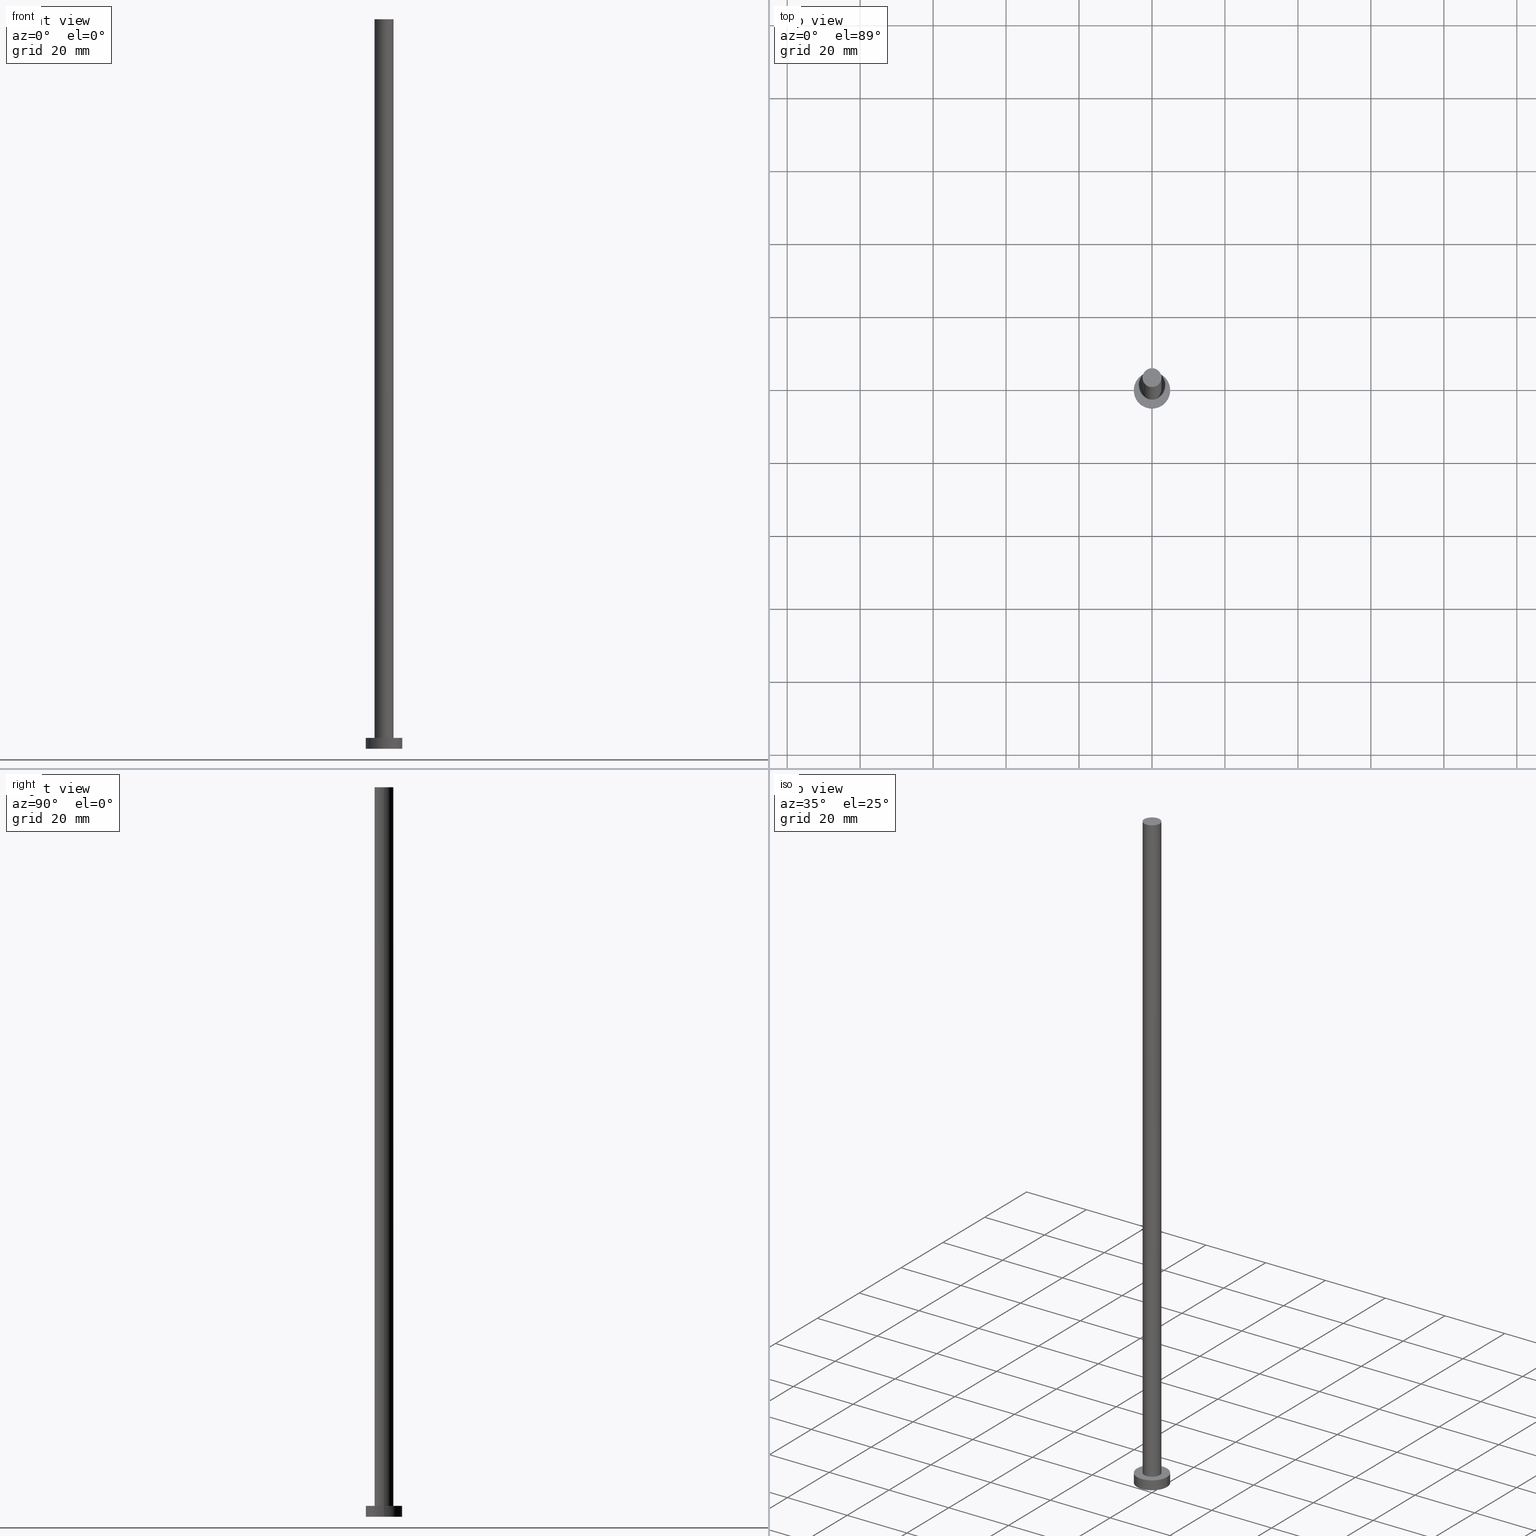
[diagram: canonical four-view strip — front | top / right | iso, engineering-drawing reading convention]
A machine part, canonical four-view strip (front | top / right | iso — engineering-drawing reading convention). The complete STEP part file that produces these views, byte-faithful:
ISO-10303-21;
HEADER;
FILE_DESCRIPTION (( 'STEP AP203' ),
    '1' );
FILE_NAME ('c679.STEP',
    '2023-02-13T14:35:28',
    ( '' ),
    ( '' ),
    'SwSTEP 2.0',
    'SolidWorks 2019',
    '' );
FILE_SCHEMA (( 'CONFIG_CONTROL_DESIGN' ));
ENDSEC;

DATA;
#1 = ORIENTED_EDGE ( 'NONE', *, *, #36, .T. ) ;
#2 = EDGE_CURVE ( 'NONE', #81, #23, #125, .T. ) ;
#3 = ORGANIZATION ( 'NEUR�EN�', 'NEUR�EN�', '' ) ;
#4 = AXIS2_PLACEMENT_3D ( 'NONE', #99, #122, #201 ) ;
#5 = COORDINATED_UNIVERSAL_TIME_OFFSET ( 1, 0, .AHEAD. ) ;
#6 = EDGE_CURVE ( 'NONE', #19, #157, #21, .T. ) ;
#7 = MECHANICAL_CONTEXT ( 'NONE', #75, 'mechanical' ) ;
#8 = APPLICATION_PROTOCOL_DEFINITION ( 'international standard', 'config_control_design', 1994, #124 ) ;
#9 = LOCAL_TIME ( 15, 35, 28.00000000000000000, #139 ) ;
#10 =( LENGTH_UNIT ( ) NAMED_UNIT ( * ) SI_UNIT ( .MILLI., .METRE. ) );
#11 = DIRECTION ( 'NONE',  ( -0.000000000000000000, -0.000000000000000000, -1.000000000000000000 ) ) ;
#12 = DIRECTION ( 'NONE',  ( -0.000000000000000000, -0.000000000000000000, -1.000000000000000000 ) ) ;
#13 = SECURITY_CLASSIFICATION_LEVEL ( 'unclassified' ) ;
#14 = CARTESIAN_POINT ( 'NONE',  ( 0.000000000000000000, 0.000000000000000000, 3.000000000000000000 ) ) ;
#15 = CARTESIAN_POINT ( 'NONE',  ( 2.600000000000000089, 3.184081677783118191E-16, 200.0000000000000000 ) ) ;
#16 = DIRECTION ( 'NONE',  ( -0.000000000000000000, -0.000000000000000000, -1.000000000000000000 ) ) ;
#17 = VERTEX_POINT ( 'NONE', #198 ) ;
#18 = ORIENTED_EDGE ( 'NONE', *, *, #177, .T. ) ;
#19 = VERTEX_POINT ( 'NONE', #76 ) ;
#20 = CC_DESIGN_SECURITY_CLASSIFICATION ( #54, ( #147 ) ) ;
#21 = CIRCLE ( 'NONE', #116, 5.000000000000000000 ) ;
#22 = VERTEX_POINT ( 'NONE', #37 ) ;
#23 = VERTEX_POINT ( 'NONE', #218 ) ;
#24 = DIRECTION ( 'NONE',  ( 0.000000000000000000, 0.000000000000000000, 1.000000000000000000 ) ) ;
#25 = VECTOR ( 'NONE', #149, 1000.000000000000000 ) ;
#26 = DIRECTION ( 'NONE',  ( 1.000000000000000000, 0.000000000000000000, -0.000000000000000000 ) ) ;
#27 = DIRECTION ( 'NONE',  ( 0.000000000000000000, 0.000000000000000000, 1.000000000000000000 ) ) ;
#28 = APPROVAL ( #104, 'NEUR�EN�' ) ;
#29 = DATE_AND_TIME ( #247, #79 ) ;
#30 = LINE ( 'NONE', #192, #237 ) ;
#31 = PERSON_AND_ORGANIZATION ( #106, #3 ) ;
#32 = CYLINDRICAL_SURFACE ( 'NONE', #60, 2.600000000000000089 ) ;
#33 = ORIENTED_EDGE ( 'NONE', *, *, #6, .F. ) ;
#34 = APPROVAL_ROLE ( '' ) ;
#35 = EDGE_LOOP ( 'NONE', ( #141, #195 ) ) ;
#36 = EDGE_CURVE ( 'NONE', #153, #179, #41, .T. ) ;
#37 = CARTESIAN_POINT ( 'NONE',  ( 2.600000000000000089, 3.184081677783118191E-16, 200.0000000000000000 ) ) ;
#38 = LOCAL_TIME ( 15, 35, 28.00000000000000000, #94 ) ;
#39 = ORIENTED_EDGE ( 'NONE', *, *, #78, .F. ) ;
#40 = DIRECTION ( 'NONE',  ( 1.000000000000000000, 0.000000000000000000, -0.000000000000000000 ) ) ;
#41 = CIRCLE ( 'NONE', #4, 5.000000000000000000 ) ;
#42 = AXIS2_PLACEMENT_3D ( 'NONE', #48, #243, #51 ) ;
#43 = ORIENTED_EDGE ( 'NONE', *, *, #228, .T. ) ;
#44 = APPROVAL_DATE_TIME ( #226, #28 ) ;
#45 =( NAMED_UNIT ( * ) PLANE_ANGLE_UNIT ( ) SI_UNIT ( $, .RADIAN. ) );
#46 = AXIS2_PLACEMENT_3D ( 'NONE', #129, #58, #150 ) ;
#47 = DIRECTION ( 'NONE',  ( 0.000000000000000000, 0.000000000000000000, 1.000000000000000000 ) ) ;
#48 = CARTESIAN_POINT ( 'NONE',  ( 0.000000000000000000, 0.000000000000000000, 200.0000000000000000 ) ) ;
#49 = EDGE_CURVE ( 'NONE', #179, #153, #128, .T. ) ;
#50 = CYLINDRICAL_SURFACE ( 'NONE', #108, 5.000000000000000000 ) ;
#51 = DIRECTION ( 'NONE',  ( 1.000000000000000000, 0.000000000000000000, -0.000000000000000000 ) ) ;
#52 = APPROVAL_STATUS ( 'not_yet_approved' ) ;
#53 = DIRECTION ( 'NONE',  ( -1.000000000000000000, 0.000000000000000000, 0.000000000000000000 ) ) ;
#54 = SECURITY_CLASSIFICATION ( '', '', #13 ) ;
#55 = LINE ( 'NONE', #92, #25 ) ;
#56 = PERSON_AND_ORGANIZATION_ROLE ( 'design_supplier' ) ;
#57 = CARTESIAN_POINT ( 'NONE',  ( 0.000000000000000000, 0.000000000000000000, 0.000000000000000000 ) ) ;
#58 = DIRECTION ( 'NONE',  ( -0.000000000000000000, -0.000000000000000000, -1.000000000000000000 ) ) ;
#59 = EDGE_LOOP ( 'NONE', ( #65, #64 ) ) ;
#60 = AXIS2_PLACEMENT_3D ( 'NONE', #169, #110, #245 ) ;
#61 = EDGE_LOOP ( 'NONE', ( #82, #178, #101, #1 ) ) ;
#62 = DATE_TIME_ROLE ( 'creation_date' ) ;
#63 = EDGE_CURVE ( 'NONE', #17, #81, #214, .T. ) ;
#64 = ORIENTED_EDGE ( 'NONE', *, *, #78, .T. ) ;
#65 = ORIENTED_EDGE ( 'NONE', *, *, #202, .T. ) ;
#66 = CC_DESIGN_APPROVAL ( #28, ( #156 ) ) ;
#67 = AXIS2_PLACEMENT_3D ( 'NONE', #89, #111, #232 ) ;
#68 = APPROVAL_ROLE ( '' ) ;
#69 = CC_DESIGN_PERSON_AND_ORGANIZATION_ASSIGNMENT ( #154, #98, ( #156 ) ) ;
#70 = PLANE ( 'NONE',  #42 ) ;
#71 = DIRECTION ( 'NONE',  ( 0.000000000000000000, 0.000000000000000000, 1.000000000000000000 ) ) ;
#72 = PERSON_AND_ORGANIZATION_ROLE ( 'classification_officer' ) ;
#73 = FACE_OUTER_BOUND ( 'NONE', #117, .T. ) ;
#74 = FACE_OUTER_BOUND ( 'NONE', #251, .T. ) ;
#75 = APPLICATION_CONTEXT ( 'configuration controlled 3d designs of mechanical parts and assemblies' ) ;
#76 = CARTESIAN_POINT ( 'NONE',  ( 5.000000000000000000, 6.123233995736766282E-16, 3.000000000000000000 ) ) ;
#77 = APPROVAL_STATUS ( 'not_yet_approved' ) ;
#78 = EDGE_CURVE ( 'NONE', #22, #17, #185, .T. ) ;
#79 = LOCAL_TIME ( 15, 35, 28.00000000000000000, #244 ) ;
#80 = ORIENTED_EDGE ( 'NONE', *, *, #167, .F. ) ;
#81 = VERTEX_POINT ( 'NONE', #230 ) ;
#82 = ORIENTED_EDGE ( 'NONE', *, *, #220, .F. ) ;
#83 =( NAMED_UNIT ( * ) SI_UNIT ( $, .STERADIAN. ) SOLID_ANGLE_UNIT ( ) );
#84 = ADVANCED_FACE ( 'NONE', ( #213 ), #152, .T. ) ;
#85 = CALENDAR_DATE ( 2023, 13, 2 ) ;
#86 = AXIS2_PLACEMENT_3D ( 'NONE', #255, #240, #119 ) ;
#87 = CC_DESIGN_PERSON_AND_ORGANIZATION_ASSIGNMENT ( #254, #56, ( #147 ) ) ;
#88 = PRODUCT ( 'c679', 'c679', '', ( #7 ) ) ;
#89 = CARTESIAN_POINT ( 'NONE',  ( 0.000000000000000000, 0.000000000000000000, 3.000000000000000000 ) ) ;
#90 = CC_DESIGN_APPROVAL ( #136, ( #147 ) ) ;
#91 = AXIS2_PLACEMENT_3D ( 'NONE', #114, #16, #215 ) ;
#92 = CARTESIAN_POINT ( 'NONE',  ( 5.000000000000000000, 6.123233995736766282E-16, 3.000000000000000000 ) ) ;
#93 = DIRECTION ( 'NONE',  ( 1.000000000000000000, 0.000000000000000000, 0.000000000000000000 ) ) ;
#94 = COORDINATED_UNIVERSAL_TIME_OFFSET ( 1, 0, .AHEAD. ) ;
#95 = PLANE ( 'NONE',  #200 ) ;
#96 = CIRCLE ( 'NONE', #241, 2.600000000000000089 ) ;
#97 = ORIENTED_EDGE ( 'NONE', *, *, #2, .T. ) ;
#98 = PERSON_AND_ORGANIZATION_ROLE ( 'creator' ) ;
#99 = CARTESIAN_POINT ( 'NONE',  ( 0.000000000000000000, 0.000000000000000000, 0.000000000000000000 ) ) ;
#100 = PERSON_AND_ORGANIZATION ( #106, #3 ) ;
#101 = ORIENTED_EDGE ( 'NONE', *, *, #167, .T. ) ;
#102 = ORIENTED_EDGE ( 'NONE', *, *, #220, .T. ) ;
#103 = ORIENTED_EDGE ( 'NONE', *, *, #2, .F. ) ;
#104 = APPROVAL_STATUS ( 'not_yet_approved' ) ;
#105 = UNCERTAINTY_MEASURE_WITH_UNIT (LENGTH_MEASURE( 1.000000000000000082E-05 ), #10, 'distance_accuracy_value', 'NONE');
#106 = PERSON ( 'NEUR�EN�', 'NEUR�EN�', 'NEUR�EN�', ('NEUR�EN�'), ('NEUR�EN�'), ('NEUR�EN�') ) ;
#107 = EDGE_CURVE ( 'NONE', #157, #19, #217, .T. ) ;
#108 = AXIS2_PLACEMENT_3D ( 'NONE', #211, #12, #53 ) ;
#109 = ADVANCED_FACE ( 'NONE', ( #74 ), #162, .T. ) ;
#110 = DIRECTION ( 'NONE',  ( -0.000000000000000000, -0.000000000000000000, -1.000000000000000000 ) ) ;
#111 = DIRECTION ( 'NONE',  ( 0.000000000000000000, 0.000000000000000000, 1.000000000000000000 ) ) ;
#112 = FACE_BOUND ( 'NONE', #221, .T. ) ;
#113 = DATE_TIME_ROLE ( 'classification_date' ) ;
#114 = CARTESIAN_POINT ( 'NONE',  ( 0.000000000000000000, 0.000000000000000000, 200.0000000000000000 ) ) ;
#115 = APPROVAL_PERSON_ORGANIZATION ( #142, #136, #34 ) ;
#116 = AXIS2_PLACEMENT_3D ( 'NONE', #172, #143, #138 ) ;
#117 = EDGE_LOOP ( 'NONE', ( #121, #238 ) ) ;
#118 = APPROVAL ( #52, 'NEUR�EN�' ) ;
#119 = DIRECTION ( 'NONE',  ( 1.000000000000000000, 0.000000000000000000, 0.000000000000000000 ) ) ;
#120 = DATE_AND_TIME ( #219, #9 ) ;
#121 = ORIENTED_EDGE ( 'NONE', *, *, #36, .F. ) ;
#122 = DIRECTION ( 'NONE',  ( 0.000000000000000000, 0.000000000000000000, 1.000000000000000000 ) ) ;
#123 = EDGE_LOOP ( 'NONE', ( #203, #155, #222, #97 ) ) ;
#124 = APPLICATION_CONTEXT ( 'configuration controlled 3d designs of mechanical parts and assemblies' ) ;
#125 = CIRCLE ( 'NONE', #86, 2.600000000000000089 ) ;
#126 = PERSON_AND_ORGANIZATION ( #106, #3 ) ;
#127 = ADVANCED_FACE ( 'NONE', ( #73 ), #95, .F. ) ;
#128 = CIRCLE ( 'NONE', #182, 5.000000000000000000 ) ;
#129 = CARTESIAN_POINT ( 'NONE',  ( 0.000000000000000000, 0.000000000000000000, 3.000000000000000000 ) ) ;
#130 = CARTESIAN_POINT ( 'NONE',  ( 0.000000000000000000, 0.000000000000000000, 0.000000000000000000 ) ) ;
#131 = ADVANCED_FACE ( 'NONE', ( #190 ), #32, .T. ) ;
#132 = PERSON_AND_ORGANIZATION ( #106, #3 ) ;
#133 = DIRECTION ( 'NONE',  ( 1.000000000000000000, 0.000000000000000000, 0.000000000000000000 ) ) ;
#134 = FACE_OUTER_BOUND ( 'NONE', #59, .T. ) ;
#135 = DIRECTION ( 'NONE',  ( 1.000000000000000000, 0.000000000000000000, 0.000000000000000000 ) ) ;
#136 = APPROVAL ( #77, 'NEUR�EN�' ) ;
#137 = AXIS2_PLACEMENT_3D ( 'NONE', #14, #248, #135 ) ;
#138 = DIRECTION ( 'NONE',  ( 1.000000000000000000, 0.000000000000000000, 0.000000000000000000 ) ) ;
#139 = COORDINATED_UNIVERSAL_TIME_OFFSET ( 1, 0, .AHEAD. ) ;
#140 = CARTESIAN_POINT ( 'NONE',  ( 0.000000000000000000, 0.000000000000000000, 0.000000000000000000 ) ) ;
#141 = ORIENTED_EDGE ( 'NONE', *, *, #107, .T. ) ;
#142 = PERSON_AND_ORGANIZATION ( #106, #3 ) ;
#143 = DIRECTION ( 'NONE',  ( 0.000000000000000000, 0.000000000000000000, 1.000000000000000000 ) ) ;
#144 = CC_DESIGN_DATE_AND_TIME_ASSIGNMENT ( #212, #113, ( #54 ) ) ;
#145 = AXIS2_PLACEMENT_3D ( 'NONE', #209, #27, #133 ) ;
#146 = PRODUCT_RELATED_PRODUCT_CATEGORY ( 'detail', '', ( #88 ) ) ;
#147 = PRODUCT_DEFINITION_FORMATION_WITH_SPECIFIED_SOURCE ( 'LIBOVOLN�', '', #88, .NOT_KNOWN. ) ;
#148 = CARTESIAN_POINT ( 'NONE',  ( -5.000000000000000000, 0.000000000000000000, 0.000000000000000000 ) ) ;
#149 = DIRECTION ( 'NONE',  ( -0.000000000000000000, -0.000000000000000000, -1.000000000000000000 ) ) ;
#150 = DIRECTION ( 'NONE',  ( -1.000000000000000000, 0.000000000000000000, 0.000000000000000000 ) ) ;
#151 = CLOSED_SHELL ( 'NONE', ( #109, #206, #84, #234, #127, #131, #229 ) ) ;
#152 = CYLINDRICAL_SURFACE ( 'NONE', #46, 5.000000000000000000 ) ;
#153 = VERTEX_POINT ( 'NONE', #148 ) ;
#154 = PERSON_AND_ORGANIZATION ( #106, #3 ) ;
#155 = ORIENTED_EDGE ( 'NONE', *, *, #202, .F. ) ;
#156 = PRODUCT_DEFINITION ( 'NEZN�M�', '', #147, #187 ) ;
#157 = VERTEX_POINT ( 'NONE', #188 ) ;
#158 = VECTOR ( 'NONE', #235, 1000.000000000000000 ) ;
#159 = CARTESIAN_POINT ( 'NONE',  ( 5.000000000000000000, 6.123233995736766282E-16, 0.000000000000000000 ) ) ;
#160 = DIRECTION ( 'NONE',  ( -0.000000000000000000, -0.000000000000000000, -1.000000000000000000 ) ) ;
#161 = APPROVAL_ROLE ( '' ) ;
#162 = CYLINDRICAL_SURFACE ( 'NONE', #91, 2.600000000000000089 ) ;
#163 = FACE_OUTER_BOUND ( 'NONE', #35, .T. ) ;
#164 = CALENDAR_DATE ( 2023, 13, 2 ) ;
#165 = DIRECTION ( 'NONE',  ( 0.000000000000000000, 0.000000000000000000, 1.000000000000000000 ) ) ;
#166 = ADVANCED_BREP_SHAPE_REPRESENTATION ( 'c679', ( #216, #224 ), #186 ) ;
#167 = EDGE_CURVE ( 'NONE', #157, #153, #30, .T. ) ;
#168 = CC_DESIGN_APPROVAL ( #118, ( #54 ) ) ;
#169 = CARTESIAN_POINT ( 'NONE',  ( 0.000000000000000000, 0.000000000000000000, 200.0000000000000000 ) ) ;
#170 = CIRCLE ( 'NONE', #67, 2.600000000000000089 ) ;
#171 = AXIS2_PLACEMENT_3D ( 'NONE', #180, #24, #40 ) ;
#172 = CARTESIAN_POINT ( 'NONE',  ( 0.000000000000000000, 0.000000000000000000, 3.000000000000000000 ) ) ;
#173 = COORDINATED_UNIVERSAL_TIME_OFFSET ( 1, 0, .AHEAD. ) ;
#174 = APPLICATION_PROTOCOL_DEFINITION ( 'international standard', 'config_control_design', 1994, #75 ) ;
#175 = PERSON_AND_ORGANIZATION_ROLE ( 'creator' ) ;
#176 = LOCAL_TIME ( 15, 35, 28.00000000000000000, #5 ) ;
#177 = EDGE_CURVE ( 'NONE', #23, #81, #170, .T. ) ;
#178 = ORIENTED_EDGE ( 'NONE', *, *, #107, .F. ) ;
#179 = VERTEX_POINT ( 'NONE', #159 ) ;
#180 = CARTESIAN_POINT ( 'NONE',  ( 0.000000000000000000, 0.000000000000000000, 3.000000000000000000 ) ) ;
#181 = CC_DESIGN_DATE_AND_TIME_ASSIGNMENT ( #252, #62, ( #156 ) ) ;
#182 = AXIS2_PLACEMENT_3D ( 'NONE', #130, #165, #233 ) ;
#183 = PERSON_AND_ORGANIZATION_ROLE ( 'design_owner' ) ;
#184 = CC_DESIGN_PERSON_AND_ORGANIZATION_ASSIGNMENT ( #100, #175, ( #147 ) ) ;
#185 = CIRCLE ( 'NONE', #145, 2.600000000000000089 ) ;
#186 =( GEOMETRIC_REPRESENTATION_CONTEXT ( 3 ) GLOBAL_UNCERTAINTY_ASSIGNED_CONTEXT ( ( #105 ) ) GLOBAL_UNIT_ASSIGNED_CONTEXT ( ( #10, #45, #83 ) ) REPRESENTATION_CONTEXT ( 'NONE', 'WORKASPACE' ) );
#187 = DESIGN_CONTEXT ( 'detailed design', #124, 'design' ) ;
#188 = CARTESIAN_POINT ( 'NONE',  ( -5.000000000000000000, 0.000000000000000000, 3.000000000000000000 ) ) ;
#189 = PRODUCT_DEFINITION_SHAPE ( 'NONE', 'NONE',  #156 ) ;
#190 = FACE_OUTER_BOUND ( 'NONE', #123, .T. ) ;
#191 = APPROVAL_DATE_TIME ( #29, #118 ) ;
#192 = CARTESIAN_POINT ( 'NONE',  ( -5.000000000000000000, 0.000000000000000000, 3.000000000000000000 ) ) ;
#193 = LINE ( 'NONE', #15, #249 ) ;
#194 = CARTESIAN_POINT ( 'NONE',  ( -2.600000000000000089, 0.000000000000000000, 200.0000000000000000 ) ) ;
#195 = ORIENTED_EDGE ( 'NONE', *, *, #6, .T. ) ;
#196 = ORIENTED_EDGE ( 'NONE', *, *, #63, .F. ) ;
#197 = APPROVAL_DATE_TIME ( #120, #136 ) ;
#198 = CARTESIAN_POINT ( 'NONE',  ( -2.600000000000000089, 0.000000000000000000, 200.0000000000000000 ) ) ;
#199 = APPROVAL_PERSON_ORGANIZATION ( #31, #118, #161 ) ;
#200 = AXIS2_PLACEMENT_3D ( 'NONE', #57, #47, #26 ) ;
#201 = DIRECTION ( 'NONE',  ( 1.000000000000000000, 0.000000000000000000, 0.000000000000000000 ) ) ;
#202 = EDGE_CURVE ( 'NONE', #17, #22, #96, .T. ) ;
#203 = ORIENTED_EDGE ( 'NONE', *, *, #228, .F. ) ;
#204 = DIRECTION ( 'NONE',  ( 0.000000000000000000, 0.000000000000000000, 1.000000000000000000 ) ) ;
#205 = APPROVAL_PERSON_ORGANIZATION ( #207, #28, #68 ) ;
#206 = ADVANCED_FACE ( 'NONE', ( #231 ), #50, .T. ) ;
#207 = PERSON_AND_ORGANIZATION ( #106, #3 ) ;
#208 = LOCAL_TIME ( 15, 35, 28.00000000000000000, #173 ) ;
#209 = CARTESIAN_POINT ( 'NONE',  ( 0.000000000000000000, 0.000000000000000000, 200.0000000000000000 ) ) ;
#210 = SHAPE_DEFINITION_REPRESENTATION ( #189, #166 ) ;
#211 = CARTESIAN_POINT ( 'NONE',  ( 0.000000000000000000, 0.000000000000000000, 3.000000000000000000 ) ) ;
#212 = DATE_AND_TIME ( #164, #38 ) ;
#213 = FACE_OUTER_BOUND ( 'NONE', #61, .T. ) ;
#214 = LINE ( 'NONE', #194, #158 ) ;
#215 = DIRECTION ( 'NONE',  ( -1.000000000000000000, 0.000000000000000000, 0.000000000000000000 ) ) ;
#216 = MANIFOLD_SOLID_BREP ( 'P�idat vysunut�m3', #151 ) ;
#217 = CIRCLE ( 'NONE', #137, 5.000000000000000000 ) ;
#218 = CARTESIAN_POINT ( 'NONE',  ( 2.600000000000000089, 3.184081677783118191E-16, 3.000000000000000000 ) ) ;
#219 = CALENDAR_DATE ( 2023, 13, 2 ) ;
#220 = EDGE_CURVE ( 'NONE', #19, #179, #55, .T. ) ;
#221 = EDGE_LOOP ( 'NONE', ( #103, #253 ) ) ;
#222 = ORIENTED_EDGE ( 'NONE', *, *, #63, .T. ) ;
#223 = PLANE ( 'NONE',  #171 ) ;
#224 = AXIS2_PLACEMENT_3D ( 'NONE', #140, #204, #227 ) ;
#225 = EDGE_LOOP ( 'NONE', ( #33, #102, #236, #80 ) ) ;
#226 = DATE_AND_TIME ( #85, #176 ) ;
#227 = DIRECTION ( 'NONE',  ( 1.000000000000000000, 0.000000000000000000, 0.000000000000000000 ) ) ;
#228 = EDGE_CURVE ( 'NONE', #22, #23, #193, .T. ) ;
#229 = ADVANCED_FACE ( 'NONE', ( #134 ), #70, .T. ) ;
#230 = CARTESIAN_POINT ( 'NONE',  ( -2.600000000000000089, 0.000000000000000000, 3.000000000000000000 ) ) ;
#231 = FACE_OUTER_BOUND ( 'NONE', #225, .T. ) ;
#232 = DIRECTION ( 'NONE',  ( 1.000000000000000000, 0.000000000000000000, 0.000000000000000000 ) ) ;
#233 = DIRECTION ( 'NONE',  ( 1.000000000000000000, 0.000000000000000000, 0.000000000000000000 ) ) ;
#234 = ADVANCED_FACE ( 'NONE', ( #112, #163 ), #223, .T. ) ;
#235 = DIRECTION ( 'NONE',  ( -0.000000000000000000, -0.000000000000000000, -1.000000000000000000 ) ) ;
#236 = ORIENTED_EDGE ( 'NONE', *, *, #49, .T. ) ;
#237 = VECTOR ( 'NONE', #11, 1000.000000000000000 ) ;
#238 = ORIENTED_EDGE ( 'NONE', *, *, #49, .F. ) ;
#239 = CALENDAR_DATE ( 2023, 13, 2 ) ;
#240 = DIRECTION ( 'NONE',  ( 0.000000000000000000, 0.000000000000000000, 1.000000000000000000 ) ) ;
#241 = AXIS2_PLACEMENT_3D ( 'NONE', #242, #71, #93 ) ;
#242 = CARTESIAN_POINT ( 'NONE',  ( 0.000000000000000000, 0.000000000000000000, 200.0000000000000000 ) ) ;
#243 = DIRECTION ( 'NONE',  ( 0.000000000000000000, 0.000000000000000000, 1.000000000000000000 ) ) ;
#244 = COORDINATED_UNIVERSAL_TIME_OFFSET ( 1, 0, .AHEAD. ) ;
#245 = DIRECTION ( 'NONE',  ( -1.000000000000000000, 0.000000000000000000, 0.000000000000000000 ) ) ;
#246 = CC_DESIGN_PERSON_AND_ORGANIZATION_ASSIGNMENT ( #126, #183, ( #88 ) ) ;
#247 = CALENDAR_DATE ( 2023, 13, 2 ) ;
#248 = DIRECTION ( 'NONE',  ( 0.000000000000000000, 0.000000000000000000, 1.000000000000000000 ) ) ;
#249 = VECTOR ( 'NONE', #160, 1000.000000000000000 ) ;
#250 = CC_DESIGN_PERSON_AND_ORGANIZATION_ASSIGNMENT ( #132, #72, ( #54 ) ) ;
#251 = EDGE_LOOP ( 'NONE', ( #39, #43, #18, #196 ) ) ;
#252 = DATE_AND_TIME ( #239, #208 ) ;
#253 = ORIENTED_EDGE ( 'NONE', *, *, #177, .F. ) ;
#254 = PERSON_AND_ORGANIZATION ( #106, #3 ) ;
#255 = CARTESIAN_POINT ( 'NONE',  ( 0.000000000000000000, 0.000000000000000000, 3.000000000000000000 ) ) ;
ENDSEC;
END-ISO-10303-21;
